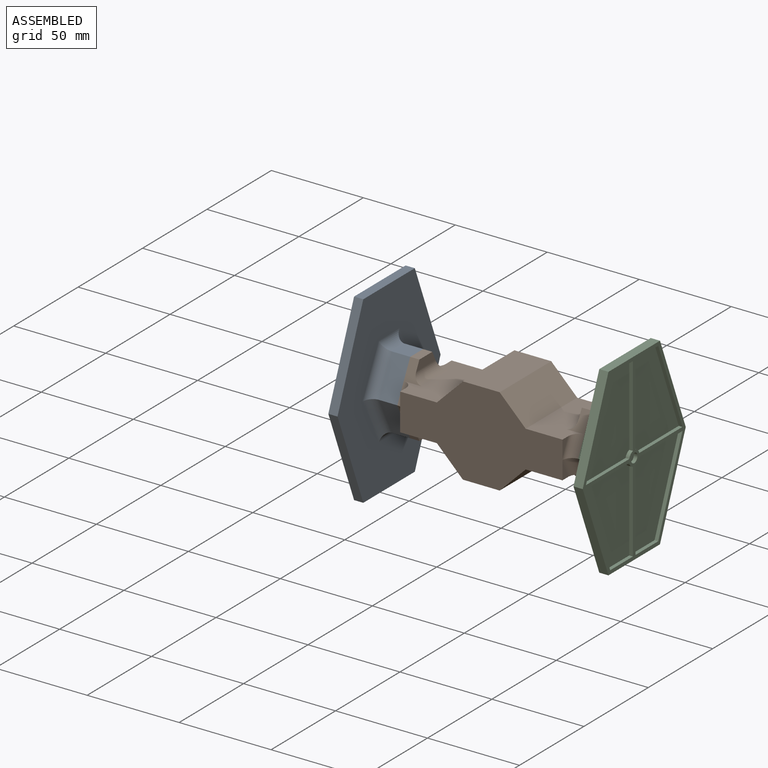
[diagram: assembled view]
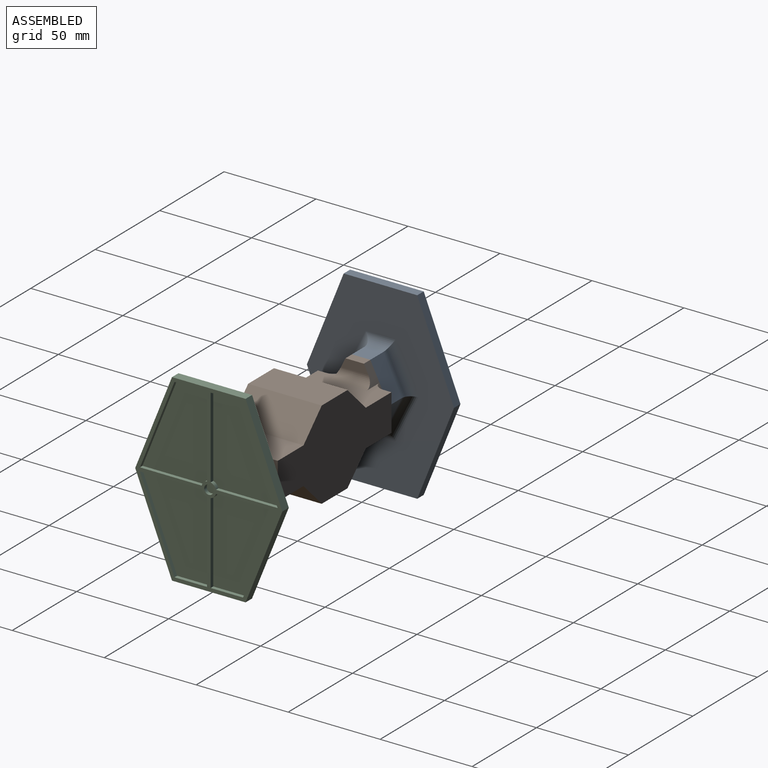
[diagram: assembled view, second angle]
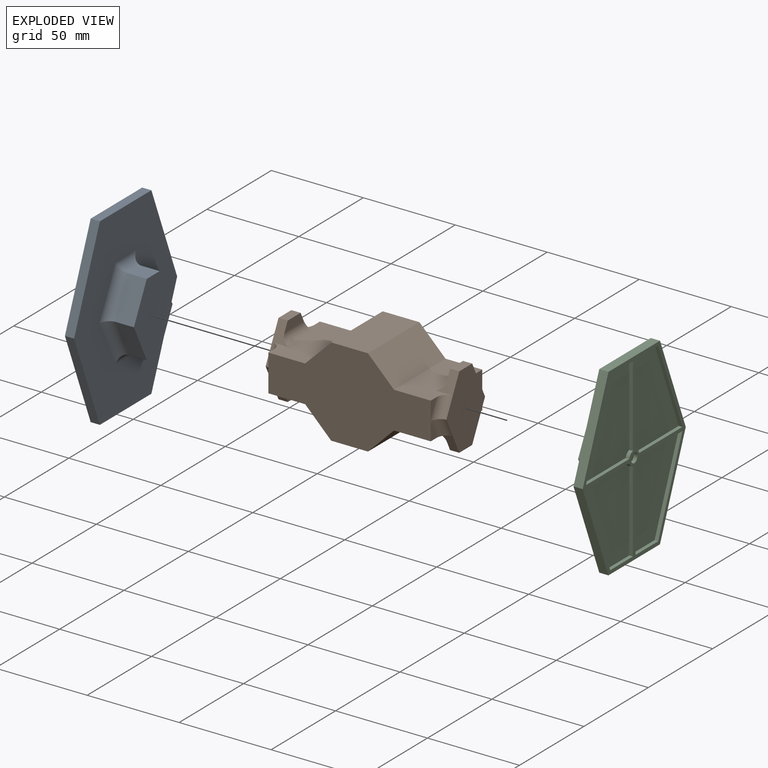
[diagram: exploded view]
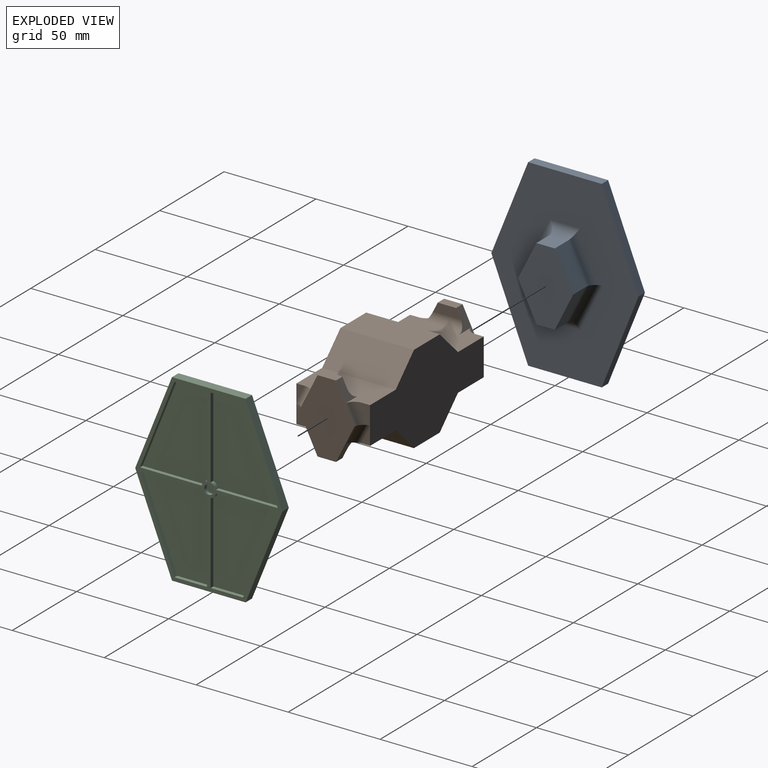
[diagram: exploded view, second angle]
ASSEMBLY  parts=3 mates=2
PART A: 47 faces, bbox 20x80x100 mm
  f0: plane 40x5mm, normal (0,0,1), area 200mm2, adj f1,f5,f6,f28
  f1: plane 50x20mm, normal (0,-0.93,0.37), area 269.3mm2, adj f0,f2,f6,f28
  f2: plane 50x20mm, normal (0,-0.93,-0.37), area 269.3mm2, adj f1,f3,f6,f28
  f3: plane 40x5mm, normal (0,0,-1), area 200mm2, adj f2,f4,f6,f28
  f4: plane 50x20mm, normal (0,0.93,-0.37), area 269.3mm2, adj f3,f5,f6,f28
  f5: plane 50x20mm, normal (0,0.93,0.37), area 269.3mm2, adj f0,f4,f6,f28
  f6: plane 100x80mm, normal (-1,0,0), area 4566mm2, adj f0,f1,f2,f3,f4,f5,f41,f42
  f7: plane 44.13x2mm, normal (0,-1,0), area 88.3mm2, adj f8,f23,f28,f29
  f8: plane 17.65x2mm, normal (0,0,1), area 35.3mm2, adj f7,f9,f28,f29
  f9: plane 47x18.8mm, normal (0,0.93,0.37), area 101.2mm2, adj f8,f10,f28,f29
  f10: plane 33.57x2mm, normal (0,0,-1), area 67.1mm2, adj f9,f23,f28,f29
  f11: plane 33.57x2mm, normal (0,0,-1), area 67.1mm2, adj f12,f24,f28,f30
  f12: plane 47x18.8mm, normal (0,-0.93,0.37), area 101.2mm2, adj f11,f13,f28,f30
  f13: plane 17.65x2mm, normal (0,0,1), area 35.3mm2, adj f12,f14,f28,f30
  f14: plane 44.13x2mm, normal (0,1,0), area 88.3mm2, adj f13,f24,f28,f30
  f15: plane 17.65x2mm, normal (0,0,-1), area 35.3mm2, adj f16,f25,f28,f31
  f16: plane 47x18.8mm, normal (0,-0.93,-0.37), area 101.2mm2, adj f15,f17,f28,f31
  f17: plane 33.57x2mm, normal (0,0,1), area 67.1mm2, adj f16,f18,f28,f31
  f18: cylinder r=4mm len=2.87mm, axis (-1,0,0), area 8.5mm2, adj f17,f25,f28,f31
  f19: plane 33.57x2mm, normal (0,0,1), area 67.1mm2, adj f20,f26,f28,f32
  f20: plane 47x18.8mm, normal (0,0.93,-0.37), area 101.2mm2, adj f19,f21,f28,f32
  f21: plane 17.65x2mm, normal (0,0,-1), area 35.3mm2, adj f20,f22,f28,f32
  f22: plane 44.13x2mm, normal (0,-1,0), area 88.3mm2, adj f21,f26,f28,f32
  f23: cylinder r=4mm len=2.87mm, axis (-1,0,0), area 8.5mm2, adj f7,f10,f28,f29
  f24: cylinder r=4mm len=2.87mm, axis (-1,0,0), area 8.5mm2, adj f11,f14,f28,f30
  f25: plane 44.13x2mm, normal (0,1,0), area 88.3mm2, adj f15,f18,f28,f31
  f26: cylinder r=4mm len=2.87mm, axis (-1,0,0), area 8.5mm2, adj f19,f22,f28,f32
  f27: cylinder r=2.5mm len=5mm, axis (-1,0,0), area 31.4mm2, adj f28,f33
  f28: plane 100x80mm, normal (1,0,0), area 918.3mm2, adj f0,f1,f2,f3,f4,f5,f7,f8
  f29: plane 47x36.45mm, normal (1,0,0), area 1265.5mm2, adj f7,f8,f9,f10,f23
  f30: plane 47x36.45mm, normal (1,0,0), area 1265.5mm2, adj f11,f12,f13,f14,f24
  f31: plane 47x36.45mm, normal (1,0,0), area 1265.5mm2, adj f15,f16,f17,f18,f25
  f32: plane 47x36.45mm, normal (1,0,0), area 1265.5mm2, adj f19,f20,f21,f22,f26
  f33: plane 5x5mm, normal (1,0,0), area 19.6mm2, adj f27
  f34: plane 10x10mm, normal (0,0,1), area 100mm2, adj f35,f39,f40,f41
  f35: plane 20x10mm, normal (0,0.89,0.45), area 223.6mm2, adj f34,f36,f40,f42
  f36: plane 20x10mm, normal (0,0.89,-0.45), area 223.6mm2, adj f35,f37,f40,f44
  f37: plane 10x10mm, normal (0,0,-1), area 100mm2, adj f36,f38,f40,f46
  f38: plane 20x10mm, normal (0,-0.89,-0.45), area 223.6mm2, adj f37,f39,f40,f45
  f39: plane 20x10mm, normal (0,-0.89,0.45), area 223.6mm2, adj f34,f38,f40,f43
  f40: plane 40x30mm, normal (-1,0,0), area 800mm2, adj f34,f35,f36,f37,f38,f39
  f41: cylinder r=5mm len=16.18mm, axis (0,-1,0), area 96.2mm2, adj f6,f34,f42,f43
  f42: cylinder r=5mm len=27.24mm, axis (0,-0.45,0.89), area 191.6mm2, adj f6,f35,f41,f44
  f43: cylinder r=5mm len=27.24mm, axis (0,-0.45,-0.89), area 191.6mm2, adj f6,f39,f41,f45
  f44: cylinder r=5mm len=27.24mm, axis (0,0.45,0.89), area 191.6mm2, adj f6,f36,f42,f46
  f45: cylinder r=5mm len=27.24mm, axis (0,0.45,-0.89), area 191.6mm2, adj f6,f38,f43,f46
  f46: cylinder r=5mm len=16.18mm, axis (0,1,0), area 96.2mm2, adj f6,f37,f44,f45
PART B: 50 faces, bbox 98.3x40.9x48.3 mm
  f0: plane 8.82x4.41mm, normal (-1,0,0), area 19.4mm2, adj f14,f15,f47
  f1: plane 8.82x4.41mm, normal (-1,0,0), area 19.4mm2, adj f13,f16,f45
  f2: plane 8.82x4.41mm, normal (-1,0,0), area 19.4mm2, adj f13,f15,f44
  f3: plane 8.82x4.41mm, normal (-1,0,0), area 19.4mm2, adj f14,f16,f46
  f4: plane 8.82x4.41mm, normal (1,0,0), area 19.4mm2, adj f13,f17,f32
  f5: plane 8.82x4.41mm, normal (1,0,0), area 19.4mm2, adj f14,f17,f30
  f6: plane 8.82x4.41mm, normal (1,0,0), area 19.4mm2, adj f14,f18,f29
  f7: plane 40x20mm, normal (0,0,1), area 800mm2, adj f8,f12,f13,f14
  f8: plane 40x14.14mm, normal (-0.71,0,0.71), area 800mm2, adj f7,f13,f14,f16
  f9: plane 40x14.14mm, normal (-0.71,0,-0.71), area 800mm2, adj f10,f13,f14,f15
  f10: plane 40x20mm, normal (0,0,-1), area 800mm2, adj f9,f11,f13,f14
  f11: plane 40x14.14mm, normal (0.71,0,-0.71), area 800mm2, adj f10,f13,f14,f18
  f12: plane 40x14.14mm, normal (0.71,0,0.71), area 800mm2, adj f7,f13,f14,f17
  f13: plane 88.34x48.29mm, normal (0,-1,0), area 2731.4mm2, adj f1,f2,f4,f7,f8,f9,f10,f11
  f14: plane 88.34x48.29mm, normal (0,1,0), area 2731.4mm2, adj f0,f3,f5,f6,f7,f8,f9,f10
  f15: plane 40x25mm, normal (0,0,-1), area 712mm2, adj f0,f2,f9,f13,f14,f38,f40,f44
  f16: plane 40x25mm, normal (0,0,1), area 712mm2, adj f1,f3,f8,f13,f14,f37,f41,f45
  f17: plane 40x25mm, normal (0,0,1), area 712mm2, adj f4,f5,f12,f13,f14,f21,f25,f30
  f18: plane 40x25mm, normal (0,0,-1), area 712mm2, adj f6,f11,f13,f14,f19,f22,f24,f29
  f19: plane 8.82x4.41mm, normal (1,0,0), area 19.4mm2, adj f13,f18,f31
  f20: plane 15x5mm, normal (-1,0,0), area 62.5mm2, adj f22,f23,f24,f33
  f21: plane 10x10mm, normal (0,-0.89,0.45), area 61.9mm2, adj f17,f26,f27,f28,f34
  f22: plane 10x10mm, normal (0,-0.89,-0.45), area 61.9mm2, adj f18,f20,f23,f27,f33
  f23: plane 10x5mm, normal (0,0,-1), area 50mm2, adj f20,f22,f24,f27
  f24: plane 10x10mm, normal (0,0.89,-0.45), area 61.9mm2, adj f18,f20,f23,f27,f33
  f25: plane 10x10mm, normal (0,0.89,0.45), area 61.9mm2, adj f17,f26,f27,f28,f34
  f26: plane 10x5mm, normal (0,0,1), area 50mm2, adj f21,f25,f27,f28
  f27: plane 40x30mm, normal (1,0,0), area 800mm2, adj f21,f22,f23,f24,f25,f26,f29,f30
  f28: plane 15x5mm, normal (-1,0,0), area 62.5mm2, adj f21,f25,f26,f34
  f29: cylinder r=5mm len=14.24mm, axis (0,0.45,0.89), area 87.5mm2, adj f6,f14,f18,f27,f30
  f30: cylinder r=5mm len=14.24mm, axis (0,-0.45,0.89), area 87.5mm2, adj f5,f14,f17,f27,f29
  f31: cylinder r=5mm len=14.24mm, axis (0,0.45,-0.89), area 87.5mm2, adj f13,f18,f19,f27,f32
  f32: cylinder r=5mm len=14.24mm, axis (0,-0.45,-0.89), area 87.5mm2, adj f4,f13,f17,f27,f31
  f33: cylinder r=5mm len=20mm, axis (0,-1,0), area 142.8mm2, adj f18,f20,f22,f24
  f34: cylinder r=5mm len=20mm, axis (0,1,0), area 142.8mm2, adj f17,f21,f25,f28
  f35: plane 15x5mm, normal (1,0,0), area 62.5mm2, adj f36,f37,f41,f48
  f36: plane 10x5mm, normal (0,0,1), area 50mm2, adj f35,f37,f41,f42
  f37: plane 10x10mm, normal (0,0.89,0.45), area 61.9mm2, adj f16,f35,f36,f42,f48
  f38: plane 10x10mm, normal (0,0.89,-0.45), area 61.9mm2, adj f15,f39,f42,f43,f49
  f39: plane 10x5mm, normal (0,0,-1), area 50mm2, adj f38,f40,f42,f43
  f40: plane 10x10mm, normal (0,-0.89,-0.45), area 61.9mm2, adj f15,f39,f42,f43,f49
  f41: plane 10x10mm, normal (0,-0.89,0.45), area 61.9mm2, adj f16,f35,f36,f42,f48
  f42: plane 40x30mm, normal (-1,0,0), area 800mm2, adj f36,f37,f38,f39,f40,f41,f44,f45
  f43: plane 15x5mm, normal (1,0,0), area 62.5mm2, adj f38,f39,f40,f49
  f44: cylinder r=5mm len=14.24mm, axis (0,-0.45,0.89), area 87.5mm2, adj f2,f13,f15,f42,f45
  f45: cylinder r=5mm len=14.24mm, axis (0,0.45,0.89), area 87.5mm2, adj f1,f13,f16,f42,f44
  f46: cylinder r=5mm len=14.24mm, axis (0,0.45,-0.89), area 87.5mm2, adj f3,f14,f16,f42,f47
  f47: cylinder r=5mm len=14.24mm, axis (0,-0.45,-0.89), area 87.5mm2, adj f0,f14,f15,f42,f46
  f48: cylinder r=5mm len=20mm, axis (0,-1,0), area 142.8mm2, adj f16,f35,f37,f41
  f49: cylinder r=5mm len=20mm, axis (0,1,0), area 142.8mm2, adj f15,f38,f40,f43
PART C: same geometry as A
PLACE A rot(axis=(0,0,-1),180deg) t=(-62.1,-98.33,20.62)mm
PLACE B rot(axis=(0,0,1),0deg) t=(2.04,-78.33,24.76)mm fixed
PLACE C rot(axis=(0,0,1),0deg) t=(66.19,-98.33,20.62)mm
MATE fastened B.f27 <-> C.f18  axis (1,0,0) through (51.19,-98.33,20.62)mm
MATE fastened B.f42 <-> A.f18  axis (-1,0,0) through (-47.1,-98.33,20.62)mm
